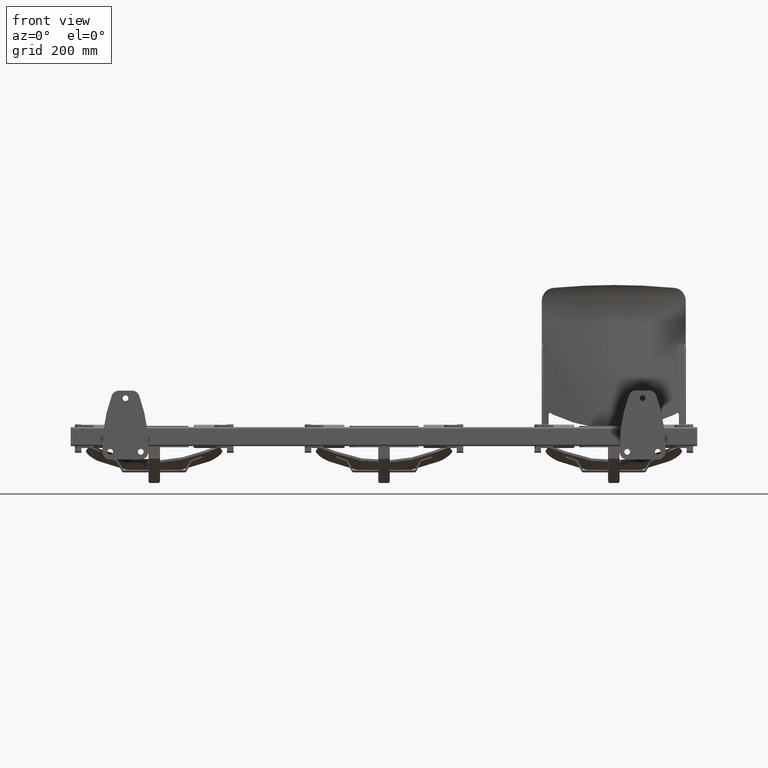
[diagram: clean part render]
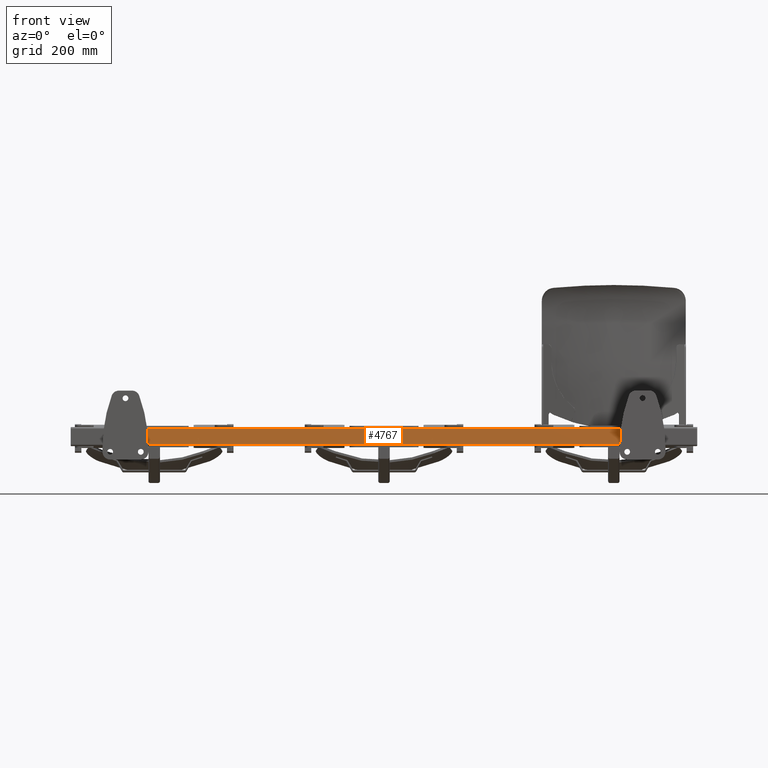
[diagram: same view with one face highlighted and labeled with its STEP entity id]
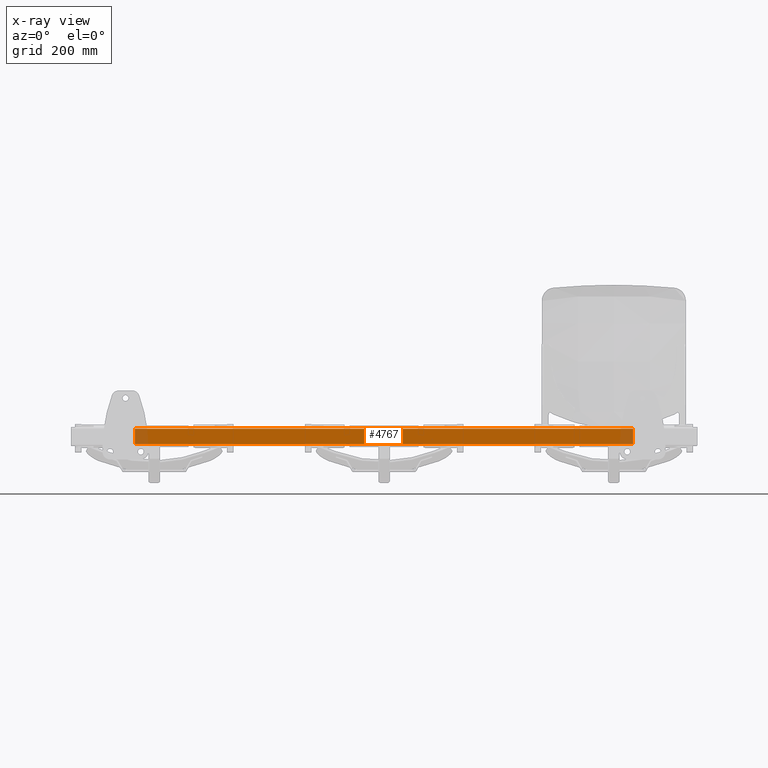
[diagram: x-ray of the same camera — body ghosted, the highlighted face saturated]
A machine part, front view. The second image highlights one B-rep face of the part: STEP entity #4767.
The next image is the same camera in x-ray: the body ghosted, the highlighted face saturated — about 5% of this face is hidden behind the body in this view.
In plain terms, the highlighted planar face has unit normal (0, 1, 0).
Its self-contained STEP definition (entity closure, byte-faithful):
#2449 = FACE_OUTER_BOUND ( 'NONE', #6663, .T. ) ;
#4366 = VERTEX_POINT ( 'NONE', #15533 ) ;
#4397 = VERTEX_POINT ( 'NONE', #15563 ) ;
#4767 = ADVANCED_FACE ( 'NONE', ( #2449 ), #6736, .F. ) ;
#5006 = VERTEX_POINT ( 'NONE', #6982 ) ;
#5013 = VERTEX_POINT ( 'NONE', #6989 ) ;
#5417 = ORIENTED_EDGE ( 'NONE', *, *, #14568, .T. ) ;
#5420 = ORIENTED_EDGE ( 'NONE', *, *, #14574, .T. ) ;
#5421 = ORIENTED_EDGE ( 'NONE', *, *, #14573, .F. ) ;
#5424 = ORIENTED_EDGE ( 'NONE', *, *, #14572, .T. ) ;
#6663 = EDGE_LOOP ( 'NONE', ( #5417, #5420, #5421, #5424 ) ) ;
#6736 = PLANE ( 'NONE',  #10470 ) ;
#6738 = CARTESIAN_POINT ( 'NONE',  ( -649.9999999999998900, 326.0000000000000000, 25.00000000000000000 ) ) ;
#6742 = DIRECTION ( 'NONE',  ( 0.0000000000000000000, 1.000000000000000000, 0.0000000000000000000 ) ) ;
#6743 = DIRECTION ( 'NONE',  ( 0.0000000000000000000, -0.0000000000000000000, 1.000000000000000000 ) ) ;
#6982 = CARTESIAN_POINT ( 'NONE',  ( -649.9999999999998900, 326.0000000000000000, -19.99999999999999600 ) ) ;
#6989 = CARTESIAN_POINT ( 'NONE',  ( 649.9999999999998900, 326.0000000000000000, -19.99999999999999600 ) ) ;
#10470 = AXIS2_PLACEMENT_3D ( 'NONE', #6738, #6742, #6743 ) ;
#14568 = EDGE_CURVE ( 'NONE', #4366, #5006, #18732, .T. ) ;
#14572 = EDGE_CURVE ( 'NONE', #4397, #4366, #18740, .T. ) ;
#14573 = EDGE_CURVE ( 'NONE', #4397, #5013, #18742, .T. ) ;
#14574 = EDGE_CURVE ( 'NONE', #5006, #5013, #18744, .T. ) ;
#15533 = CARTESIAN_POINT ( 'NONE',  ( -649.9999999999998900, 326.0000000000000000, 20.00000000000000000 ) ) ;
#15563 = CARTESIAN_POINT ( 'NONE',  ( 649.9999999999998900, 326.0000000000000000, 20.00000000000000000 ) ) ;
#18732 = LINE ( 'NONE', #21557, #18735 ) ;
#18735 = VECTOR ( 'NONE', #21559, 1000.000000000000000 ) ;
#18740 = LINE ( 'NONE', #21565, #18743 ) ;
#18742 = LINE ( 'NONE', #21567, #18745 ) ;
#18743 = VECTOR ( 'NONE', #21566, 1000.000000000000000 ) ;
#18744 = LINE ( 'NONE', #21569, #18747 ) ;
#18745 = VECTOR ( 'NONE', #21568, 1000.000000000000000 ) ;
#18747 = VECTOR ( 'NONE', #21570, 1000.000000000000000 ) ;
#21557 = CARTESIAN_POINT ( 'NONE',  ( -649.9999999999998900, 326.0000000000000000, 25.00000000000000000 ) ) ;
#21559 = DIRECTION ( 'NONE',  ( -0.0000000000000000000, -0.0000000000000000000, -1.000000000000000000 ) ) ;
#21565 = CARTESIAN_POINT ( 'NONE',  ( -649.9999999999998900, 326.0000000000000000, 20.00000000000000000 ) ) ;
#21566 = DIRECTION ( 'NONE',  ( -1.000000000000000000, -0.0000000000000000000, -0.0000000000000000000 ) ) ;
#21567 = CARTESIAN_POINT ( 'NONE',  ( 649.9999999999998900, 326.0000000000000000, 25.00000000000000000 ) ) ;
#21568 = DIRECTION ( 'NONE',  ( -0.0000000000000000000, -0.0000000000000000000, -1.000000000000000000 ) ) ;
#21569 = CARTESIAN_POINT ( 'NONE',  ( 649.9999999999998900, 326.0000000000000000, -19.99999999999999600 ) ) ;
#21570 = DIRECTION ( 'NONE',  ( 1.000000000000000000, 0.0000000000000000000, 0.0000000000000000000 ) ) ;